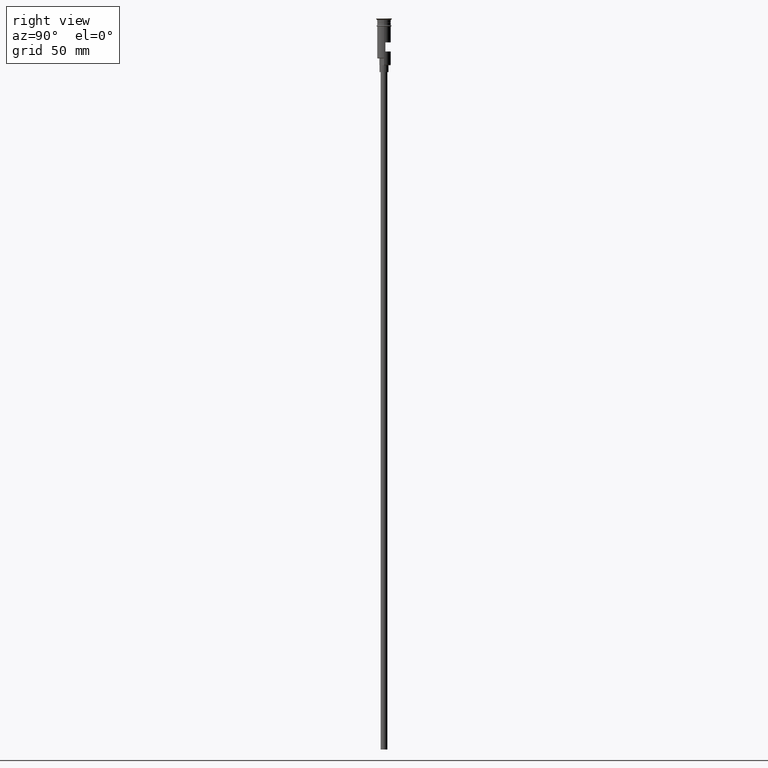
[diagram: clean part render]
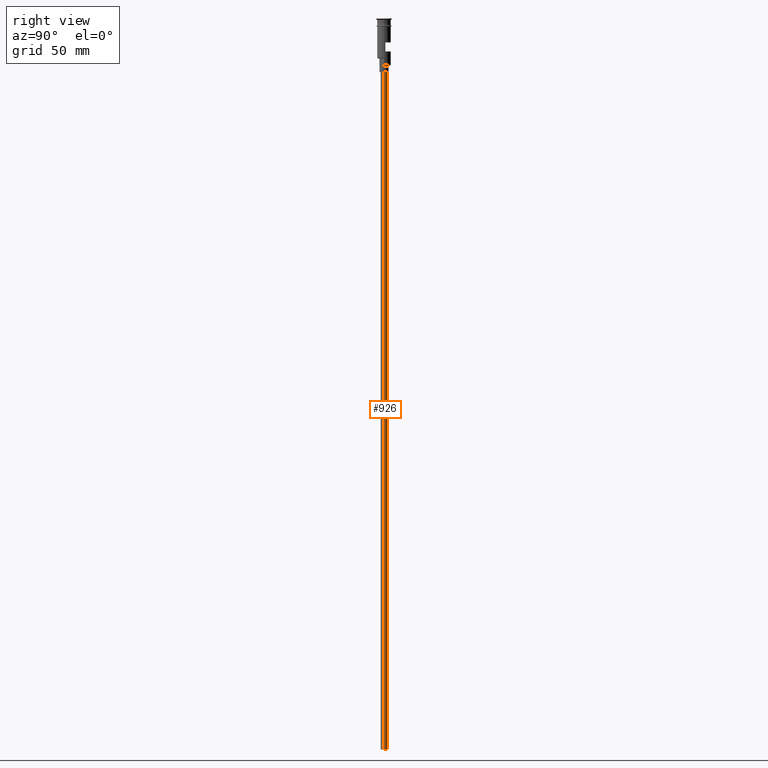
[diagram: same view with one face highlighted and labeled with its STEP entity id]
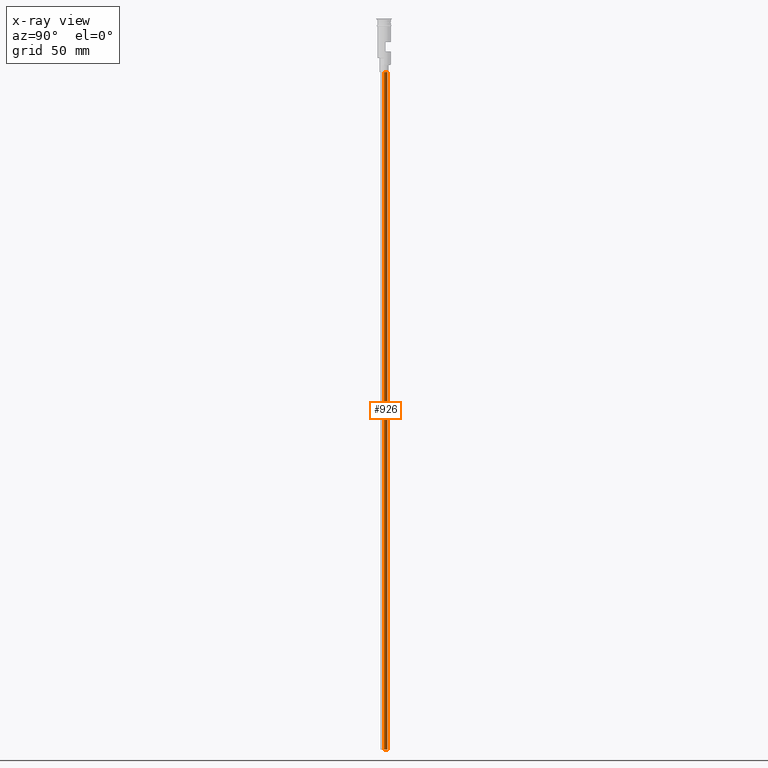
[diagram: x-ray of the same camera — body ghosted, the highlighted face saturated]
A machine part, right view. The second image highlights one B-rep face of the part: STEP entity #926.
The next image is the same camera in x-ray: the body ghosted, the highlighted face saturated — about 0% of this face is hidden behind the body in this view.
In plain terms, the highlighted cylindrical surface (edge-blend (fillet) strip) has radius 1.5 mm, axis along (-0, -0, 1).
Its self-contained STEP definition (entity closure, byte-faithful):
#43 = LINE ( 'NONE', #1044, #1013 ) ;
#67 = DIRECTION ( 'NONE',  ( 0.000000000000000000, 0.000000000000000000, -1.000000000000000000 ) ) ;
#84 = DIRECTION ( 'NONE',  ( -0.000000000000000000, -0.000000000000000000, 1.000000000000000000 ) ) ;
#107 = EDGE_LOOP ( 'NONE', ( #1397, #1063, #484, #522 ) ) ;
#324 = DIRECTION ( 'NONE',  ( -0.000000000000000000, -0.000000000000000000, 1.000000000000000000 ) ) ;
#332 = CARTESIAN_POINT ( 'NONE',  ( 0.000000000000000000, 0.000000000000000000, -23.50000000000000000 ) ) ;
#405 = EDGE_CURVE ( 'NONE', #817, #491, #43, .T. ) ;
#409 = CARTESIAN_POINT ( 'NONE',  ( 0.000000000000000000, 0.000000000000000000, -320.5000000000000000 ) ) ;
#439 = CARTESIAN_POINT ( 'NONE',  ( -1.500000000000000222, 1.836970198721030181E-16, -320.5000000000000000 ) ) ;
#444 = CARTESIAN_POINT ( 'NONE',  ( 1.500000000000000222, 0.000000000000000000, -23.50000000000000000 ) ) ;
#484 = ORIENTED_EDGE ( 'NONE', *, *, #489, .T. ) ;
#489 = EDGE_CURVE ( 'NONE', #951, #491, #1092, .T. ) ;
#491 = VERTEX_POINT ( 'NONE', #444 ) ;
#522 = ORIENTED_EDGE ( 'NONE', *, *, #405, .F. ) ;
#565 = CARTESIAN_POINT ( 'NONE',  ( -1.500000000000000222, 1.836970198721030181E-16, -23.50000000000000000 ) ) ;
#587 = FACE_OUTER_BOUND ( 'NONE', #107, .T. ) ;
#605 = AXIS2_PLACEMENT_3D ( 'NONE', #409, #651, #1139 ) ;
#651 = DIRECTION ( 'NONE',  ( 0.000000000000000000, 0.000000000000000000, -1.000000000000000000 ) ) ;
#680 = CIRCLE ( 'NONE', #605, 1.500000000000000222 ) ;
#707 = DIRECTION ( 'NONE',  ( 1.000000000000000000, 0.000000000000000000, 0.000000000000000000 ) ) ;
#817 = VERTEX_POINT ( 'NONE', #1032 ) ;
#873 = EDGE_CURVE ( 'NONE', #1165, #817, #680, .T. ) ;
#920 = EDGE_CURVE ( 'NONE', #1165, #951, #1447, .T. ) ;
#926 = ADVANCED_FACE ( 'NONE', ( #587 ), #1547, .T. ) ;
#951 = VERTEX_POINT ( 'NONE', #565 ) ;
#1013 = VECTOR ( 'NONE', #1033, 1000.000000000000000 ) ;
#1032 = CARTESIAN_POINT ( 'NONE',  ( 1.500000000000000222, 0.000000000000000000, -320.5000000000000000 ) ) ;
#1033 = DIRECTION ( 'NONE',  ( -0.000000000000000000, -0.000000000000000000, 1.000000000000000000 ) ) ;
#1044 = CARTESIAN_POINT ( 'NONE',  ( 1.500000000000000222, 0.000000000000000000, -320.5000000000000000 ) ) ;
#1063 = ORIENTED_EDGE ( 'NONE', *, *, #920, .T. ) ;
#1092 = CIRCLE ( 'NONE', #1164, 1.500000000000000222 ) ;
#1139 = DIRECTION ( 'NONE',  ( -1.000000000000000000, 0.000000000000000000, 0.000000000000000000 ) ) ;
#1164 = AXIS2_PLACEMENT_3D ( 'NONE', #332, #67, #1550 ) ;
#1165 = VERTEX_POINT ( 'NONE', #1365 ) ;
#1177 = CARTESIAN_POINT ( 'NONE',  ( 0.000000000000000000, 0.000000000000000000, -320.5000000000000000 ) ) ;
#1248 = AXIS2_PLACEMENT_3D ( 'NONE', #1177, #324, #707 ) ;
#1365 = CARTESIAN_POINT ( 'NONE',  ( -1.500000000000000222, 1.836970198721030181E-16, -320.5000000000000000 ) ) ;
#1397 = ORIENTED_EDGE ( 'NONE', *, *, #873, .F. ) ;
#1447 = LINE ( 'NONE', #439, #1508 ) ;
#1508 = VECTOR ( 'NONE', #84, 1000.000000000000000 ) ;
#1547 = CYLINDRICAL_SURFACE ( 'NONE', #1248, 1.500000000000000222 ) ;
#1550 = DIRECTION ( 'NONE',  ( -1.000000000000000000, 0.000000000000000000, 0.000000000000000000 ) ) ;